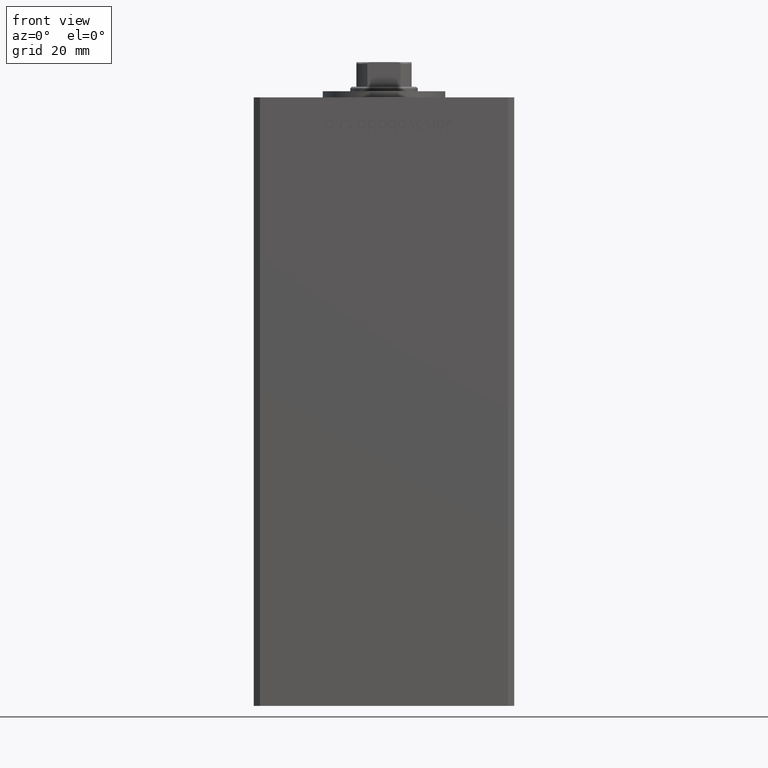
[diagram: clean part render]
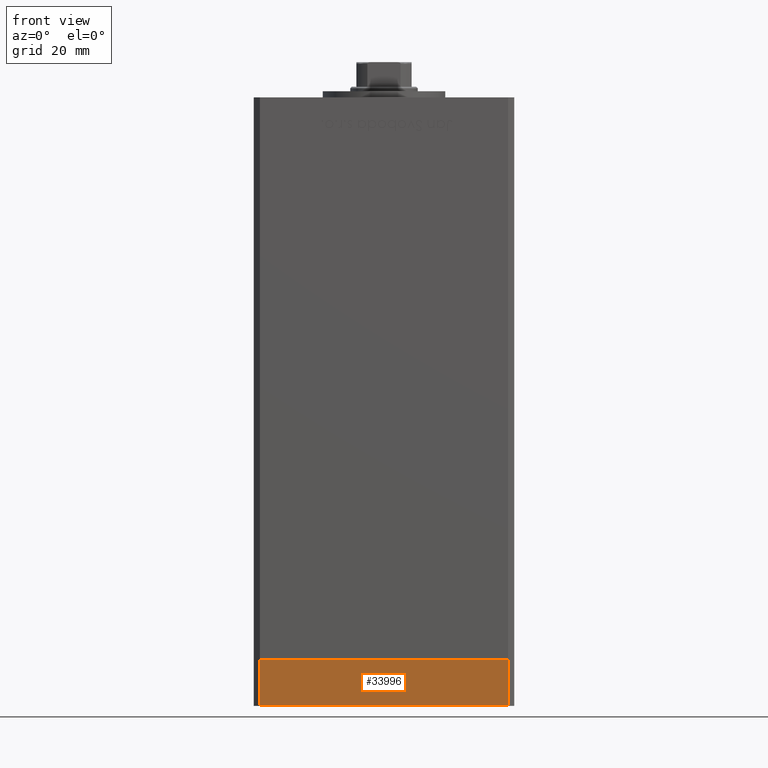
[diagram: same view with one face highlighted and labeled with its STEP entity id]
A machine part, front view. The second image highlights one B-rep face of the part: STEP entity #33996.
In plain terms, the highlighted planar face has unit normal (-0, -1, -0).
Its self-contained STEP definition (entity closure, byte-faithful):
#1513 = DIRECTION ( 'NONE',  ( 1.000000000000000000, 1.713307136767217096E-16, 0.000000000000000000 ) ) ;
#2060 = ORIENTED_EDGE ( 'NONE', *, *, #39105, .F. ) ;
#2514 = CARTESIAN_POINT ( 'NONE',  ( 40.50000000000000000, -37.50000000000000711, 0.000000000000000000 ) ) ;
#2829 = CARTESIAN_POINT ( 'NONE',  ( -40.49999999999999289, -37.50000000000002132, -15.00000000000000000 ) ) ;
#4873 = CARTESIAN_POINT ( 'NONE',  ( 40.50000000000000000, -37.50000000000000711, -15.00000000000000000 ) ) ;
#5107 = LINE ( 'NONE', #41504, #9364 ) ;
#5458 = LINE ( 'NONE', #9148, #16430 ) ;
#5939 = DIRECTION ( 'NONE',  ( 1.713307136767217096E-16, -1.000000000000000000, 0.000000000000000000 ) ) ;
#7420 = EDGE_LOOP ( 'NONE', ( #2060, #13380, #10819, #9118 ) ) ;
#7682 = LINE ( 'NONE', #23763, #29689 ) ;
#7688 = FACE_OUTER_BOUND ( 'NONE', #7420, .T. ) ;
#9118 = ORIENTED_EDGE ( 'NONE', *, *, #28449, .T. ) ;
#9148 = CARTESIAN_POINT ( 'NONE',  ( -40.49999999999999289, -37.50000000000002132, -15.00000000000000000 ) ) ;
#9364 = VECTOR ( 'NONE', #37548, 1000.000000000000000 ) ;
#10819 = ORIENTED_EDGE ( 'NONE', *, *, #27543, .T. ) ;
#13380 = ORIENTED_EDGE ( 'NONE', *, *, #14815, .F. ) ;
#14379 = CARTESIAN_POINT ( 'NONE',  ( -40.49999999999999289, -37.50000000000002132, -15.00000000000000000 ) ) ;
#14815 = EDGE_CURVE ( 'NONE', #40836, #36994, #7682, .T. ) ;
#16374 = CARTESIAN_POINT ( 'NONE',  ( -40.49999999999999289, -37.50000000000002132, 0.000000000000000000 ) ) ;
#16430 = VECTOR ( 'NONE', #1513, 1000.000000000000000 ) ;
#19857 = VECTOR ( 'NONE', #40475, 1000.000000000000000 ) ;
#21704 = AXIS2_PLACEMENT_3D ( 'NONE', #14379, #5939, #37861 ) ;
#23763 = CARTESIAN_POINT ( 'NONE',  ( -40.49999999999999289, -37.50000000000002132, -15.00000000000000000 ) ) ;
#27543 = EDGE_CURVE ( 'NONE', #40836, #51015, #5458, .T. ) ;
#28449 = EDGE_CURVE ( 'NONE', #51015, #29805, #52107, .T. ) ;
#29689 = VECTOR ( 'NONE', #35654, 1000.000000000000000 ) ;
#29805 = VERTEX_POINT ( 'NONE', #2514 ) ;
#33903 = PLANE ( 'NONE',  #21704 ) ;
#33996 = ADVANCED_FACE ( 'NONE', ( #7688 ), #33903, .T. ) ;
#35253 = CARTESIAN_POINT ( 'NONE',  ( 40.50000000000000000, -37.50000000000000711, -15.00000000000000000 ) ) ;
#35654 = DIRECTION ( 'NONE',  ( 0.000000000000000000, 0.000000000000000000, 1.000000000000000000 ) ) ;
#36994 = VERTEX_POINT ( 'NONE', #16374 ) ;
#37548 = DIRECTION ( 'NONE',  ( 1.000000000000000000, 1.713307136767217096E-16, 0.000000000000000000 ) ) ;
#37861 = DIRECTION ( 'NONE',  ( 1.000000000000000000, 1.713307136767217096E-16, 0.000000000000000000 ) ) ;
#39105 = EDGE_CURVE ( 'NONE', #36994, #29805, #5107, .T. ) ;
#40475 = DIRECTION ( 'NONE',  ( 0.000000000000000000, 0.000000000000000000, 1.000000000000000000 ) ) ;
#40836 = VERTEX_POINT ( 'NONE', #2829 ) ;
#41504 = CARTESIAN_POINT ( 'NONE',  ( -40.49999999999999289, -37.50000000000002132, 0.000000000000000000 ) ) ;
#51015 = VERTEX_POINT ( 'NONE', #35253 ) ;
#52107 = LINE ( 'NONE', #4873, #19857 ) ;